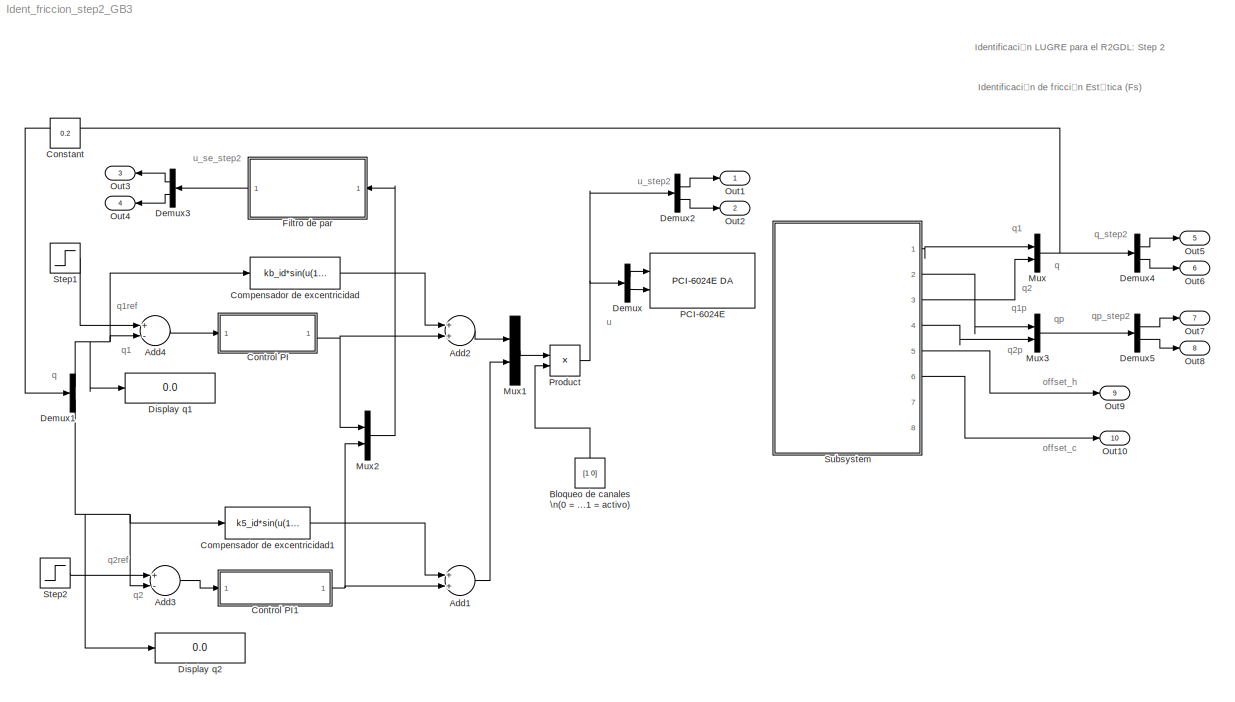
MODEL Ident_friccion_step2_GB3
KIND model
CONFIG PreLoadFcn = inicializacion_step2
CONFIG StopFcn = saveDATA_Ident_friccion_STEP2_GB
BLOCK [Sum] Add1
  CollapseMode = All dimensions
  InputSameDT = off
  OutDataTypeMode = Inherit via internal rule
  OutScaling = 2^-10
  Ports = [2, 1]
  SaturateOnIntegerOverflow = off
BLOCK [Sum] Add2
  CollapseMode = All dimensions
  InputSameDT = off
  OutDataTypeMode = Inherit via internal rule
  OutScaling = 2^-10
  Ports = [2, 1]
  SaturateOnIntegerOverflow = off
BLOCK [Sum] Add3
  CollapseMode = All dimensions
  InputSameDT = off
  Inputs = +-
  OutDataTypeMode = Inherit via internal rule
  OutScaling = 2^-10
  Ports = [2, 1]
  SaturateOnIntegerOverflow = off
BLOCK [Sum] Add4
  CollapseMode = All dimensions
  InputSameDT = off
  Inputs = +-
  OutDataTypeMode = Inherit via internal rule
  OutScaling = 2^-10
  Ports = [2, 1]
  SaturateOnIntegerOverflow = off
BLOCK [Constant] Bloqueo de canales \n(0 = Bloqueado, 1 = activo)
  Value = [1 0]
BLOCK [Fcn] Compensador de excentricidad
  Expr = kb_id*sin(u(1))
BLOCK [Fcn] Compensador de excentricidad1
  Expr = k5_id*sin(u(1))
BLOCK [Constant] Constant
  IOType = siggen
  Value = 0.2
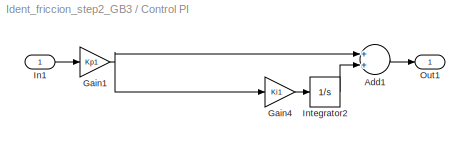
BLOCK [SubSystem] Control PI
  FunctionWithSeparateData = off
  MaskHideContents = off
  MinAlgLoopOccurrences = off
  Ports = [1, 1]
  RTWSystemCode = Auto
BLOCK [Sum] Control PI/Add1
  CollapseMode = All dimensions
  InputSameDT = off
  OutDataTypeMode = Inherit via internal rule
  OutScaling = 2^-10
  Ports = [2, 1]
  SaturateOnIntegerOverflow = off
BLOCK [Gain] Control PI/Gain1
  Gain = Kp1
  OutDataTypeMode = Inherit via internal rule
  ParameterDataTypeMode = Inherit via internal rule
  SaturateOnIntegerOverflow = off
BLOCK [Gain] Control PI/Gain4
  Gain = Ki1
  OutDataTypeMode = Inherit via internal rule
  ParameterDataTypeMode = Inherit via internal rule
  SaturateOnIntegerOverflow = off
BLOCK [Inport] Control PI/In1
  IconDisplay = Port number
BLOCK [Integrator] Control PI/Integrator2
  IgnoreLimit = off
  Ports = [1, 1]
BLOCK [Outport] Control PI/Out1
  BusOutputAsStruct = off
  IconDisplay = Port number
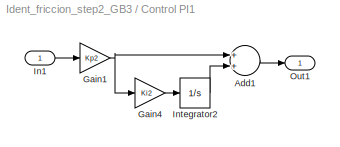
BLOCK [SubSystem] Control PI1
  FunctionWithSeparateData = off
  MaskHideContents = off
  MinAlgLoopOccurrences = off
  Ports = [1, 1]
  RTWSystemCode = Auto
BLOCK [Sum] Control PI1/Add1
  CollapseMode = All dimensions
  InputSameDT = off
  OutDataTypeMode = Inherit via internal rule
  OutScaling = 2^-10
  Ports = [2, 1]
  SaturateOnIntegerOverflow = off
BLOCK [Gain] Control PI1/Gain1
  Gain = Kp2
  OutDataTypeMode = Inherit via internal rule
  ParameterDataTypeMode = Inherit via internal rule
  SaturateOnIntegerOverflow = off
BLOCK [Gain] Control PI1/Gain4
  Gain = Ki2
  OutDataTypeMode = Inherit via internal rule
  ParameterDataTypeMode = Inherit via internal rule
  SaturateOnIntegerOverflow = off
BLOCK [Inport] Control PI1/In1
  IconDisplay = Port number
BLOCK [Integrator] Control PI1/Integrator2
  IgnoreLimit = off
  Ports = [1, 1]
BLOCK [Outport] Control PI1/Out1
  BusOutputAsStruct = off
  IconDisplay = Port number
BLOCK [Demux] Demux
  DisplayOption = bar
  Outputs = 2
  Ports = [1, 2]
BLOCK [Demux] Demux1
  DisplayOption = bar
  Outputs = 2
  Ports = [1, 2]
BLOCK [Demux] Demux2
  DisplayOption = bar
  Outputs = 2
  Ports = [1, 2]
BLOCK [Demux] Demux3
  DisplayOption = bar
  Outputs = 2
  Ports = [1, 2]
BLOCK [Demux] Demux4
  DisplayOption = bar
  Outputs = 2
  Ports = [1, 2]
BLOCK [Demux] Demux5
  DisplayOption = bar
  Outputs = 2
  Ports = [1, 2]
BLOCK [Display] Display q1
  Decimation = 1
  Lockdown = off
  Ports = [1]
BLOCK [Display] Display q2
  Decimation = 1
  Lockdown = off
  Ports = [1]
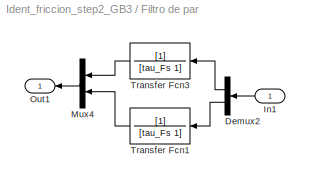
BLOCK [SubSystem] Filtro de par
  FunctionWithSeparateData = off
  MaskHideContents = off
  MinAlgLoopOccurrences = off
  Ports = [1, 1]
  RTWSystemCode = Auto
BLOCK [Demux] Filtro de par/Demux2
  DisplayOption = bar
  Outputs = 2
  Ports = [1, 2]
BLOCK [Inport] Filtro de par/In1
  IconDisplay = Port number
BLOCK [Mux] Filtro de par/Mux4
  DisplayOption = bar
  Inputs = 2
  Ports = [2, 1]
BLOCK [Outport] Filtro de par/Out1
  BusOutputAsStruct = off
  IconDisplay = Port number
BLOCK [TransferFcn] Filtro de par/Transfer Fcn1
  Denominator = [tau_Fs 1]
BLOCK [TransferFcn] Filtro de par/Transfer Fcn3
  Denominator = [tau_Fs 1]
BLOCK [Mux] Mux
  DisplayOption = bar
  Inputs = 2
  Ports = [2, 1]
BLOCK [Mux] Mux1
  DisplayOption = bar
  Inputs = 2
  Ports = [2, 1]
BLOCK [Mux] Mux2
  DisplayOption = bar
  Inputs = 2
  Ports = [2, 1]
BLOCK [Mux] Mux3
  DisplayOption = bar
  Inputs = 2
  Ports = [2, 1]
BLOCK [Outport] Out1
  BusOutputAsStruct = off
  IconDisplay = Port number
BLOCK [Outport] Out10
  BusOutputAsStruct = off
  IconDisplay = Port number
  Port = 10
BLOCK [Outport] Out2
  BusOutputAsStruct = off
  IconDisplay = Port number
  Port = 2
BLOCK [Outport] Out3
  BusOutputAsStruct = off
  IconDisplay = Port number
  Port = 3
BLOCK [Outport] Out4
  BusOutputAsStruct = off
  IconDisplay = Port number
  Port = 4
BLOCK [Outport] Out5
  BusOutputAsStruct = off
  IconDisplay = Port number
  Port = 5
BLOCK [Outport] Out6
  BusOutputAsStruct = off
  IconDisplay = Port number
  Port = 6
BLOCK [Outport] Out7
  BusOutputAsStruct = off
  IconDisplay = Port number
  Port = 7
BLOCK [Outport] Out8
  BusOutputAsStruct = off
  IconDisplay = Port number
  Port = 8
BLOCK [Outport] Out9
  BusOutputAsStruct = off
  IconDisplay = Port number
  Port = 9
BLOCK [Reference] PCI-6024E   REF=xpcnilib/D//A/PCI-6024E DA
  Ports = [2]
  SourceBlock = xpcnilib/D//A/PCI-6024E DA
  SourceType = danipci6024e
  channel = [1,2]
  initValue = [0]
  reset = [1]
  sampletime = 0.001
  slot = -1
BLOCK [Product] Product
  CollapseMode = All dimensions
  InputSameDT = off
  OutDataTypeMode = Inherit via internal rule
  Ports = [2, 1]
  SaturateOnIntegerOverflow = off
BLOCK [Step] Step1
  After = teta1*pi/180
  SampleTime = 0
  Time = 0
BLOCK [Step] Step2
  After = teta2*pi/180
  SampleTime = 0
  Time = 0
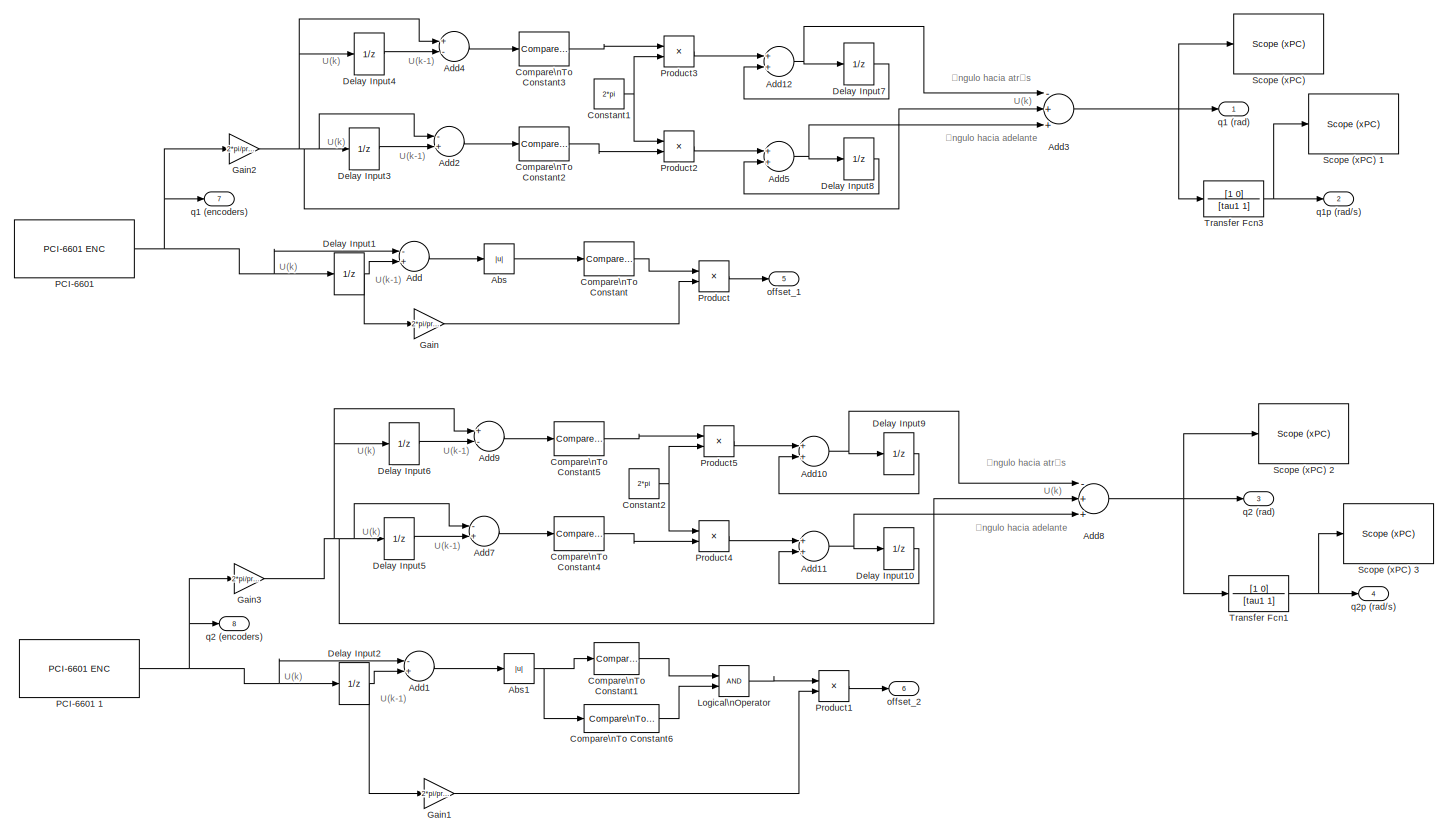
[diagram: Subsystem - part 1/1, most of the canvas]
BLOCK [SubSystem] Subsystem
  FunctionWithSeparateData = off
  MaskHideContents = off
  MinAlgLoopOccurrences = off
  Ports = [0, 8]
  RTWSystemCode = Auto
BLOCK [Abs] Subsystem/Abs
  SaturateOnIntegerOverflow = off
BLOCK [Abs] Subsystem/Abs1
  SaturateOnIntegerOverflow = off
BLOCK [Sum] Subsystem/Add
  CollapseMode = All dimensions
  InputSameDT = off
  Inputs = -+
  OutDataTypeMode = Inherit via internal rule
  OutScaling = 2^-10
  Ports = [2, 1]
  SaturateOnIntegerOverflow = off
BLOCK [Sum] Subsystem/Add1
  CollapseMode = All dimensions
  InputSameDT = off
  Inputs = -+
  OutDataTypeMode = Inherit via internal rule
  OutScaling = 2^-10
  Ports = [2, 1]
  SaturateOnIntegerOverflow = off
BLOCK [Sum] Subsystem/Add10
  CollapseMode = All dimensions
  InputSameDT = off
  OutDataTypeMode = Inherit via internal rule
  OutScaling = 2^-10
  Ports = [2, 1]
  SaturateOnIntegerOverflow = off
BLOCK [Sum] Subsystem/Add11
  CollapseMode = All dimensions
  InputSameDT = off
  OutDataTypeMode = Inherit via internal rule
  OutScaling = 2^-10
  Ports = [2, 1]
  SaturateOnIntegerOverflow = off
BLOCK [Sum] Subsystem/Add12
  CollapseMode = All dimensions
  InputSameDT = off
  OutDataTypeMode = Inherit via internal rule
  OutScaling = 2^-10
  Ports = [2, 1]
  SaturateOnIntegerOverflow = off
BLOCK [Sum] Subsystem/Add2
  CollapseMode = All dimensions
  InputSameDT = off
  Inputs = -+
  OutDataTypeMode = Inherit via internal rule
  OutScaling = 2^-10
  Ports = [2, 1]
  SaturateOnIntegerOverflow = off
BLOCK [Sum] Subsystem/Add3
  CollapseMode = All dimensions
  InputSameDT = off
  Inputs = -++
  OutDataTypeMode = Inherit via internal rule
  OutScaling = 2^-10
  Ports = [3, 1]
  SaturateOnIntegerOverflow = off
BLOCK [Sum] Subsystem/Add4
  CollapseMode = All dimensions
  InputSameDT = off
  Inputs = +-
  OutDataTypeMode = Inherit via internal rule
  OutScaling = 2^-10
  Ports = [2, 1]
  SaturateOnIntegerOverflow = off
BLOCK [Sum] Subsystem/Add5
  CollapseMode = All dimensions
  InputSameDT = off
  OutDataTypeMode = Inherit via internal rule
  OutScaling = 2^-10
  Ports = [2, 1]
  SaturateOnIntegerOverflow = off
BLOCK [Sum] Subsystem/Add7
  CollapseMode = All dimensions
  InputSameDT = off
  Inputs = -+
  OutDataTypeMode = Inherit via internal rule
  OutScaling = 2^-10
  Ports = [2, 1]
  SaturateOnIntegerOverflow = off
BLOCK [Sum] Subsystem/Add8
  CollapseMode = All dimensions
  InputSameDT = off
  Inputs = -++
  OutDataTypeMode = Inherit via internal rule
  OutScaling = 2^-10
  Ports = [3, 1]
  SaturateOnIntegerOverflow = off
BLOCK [Sum] Subsystem/Add9
  CollapseMode = All dimensions
  InputSameDT = off
  Inputs = +-
  OutDataTypeMode = Inherit via internal rule
  OutScaling = 2^-10
  Ports = [2, 1]
  SaturateOnIntegerOverflow = off
BLOCK [Reference] Subsystem/Compare\nTo Constant  REF=simulink/Logic and Bit\nOperations/Compare\nTo Constant
  FunctionWithSeparateData = off
  LogicOutDataTypeMode = uint8
  Ports = [1, 1]
  RTWMemSecDataConstants = Inherit from model
  RTWMemSecDataInternal = Inherit from model
  RTWMemSecDataParameters = Inherit from model
  RTWMemSecFuncExecute = Inherit from model
  RTWMemSecFuncInitTerm = Inherit from model
  ShowPortLabels = FromPortIcon
  SourceBlock = simulink/Logic and Bit\nOperations/Compare\nTo Constant
  SourceType = Compare To Constant
  SystemSampleTime = -1
  ZeroCross = off
  const = zero_h
  relop = >
BLOCK [Reference] Subsystem/Compare\nTo Constant1  REF=simulink/Logic and Bit\nOperations/Compare\nTo Constant
  FunctionWithSeparateData = off
  LogicOutDataTypeMode = uint8
  Ports = [1, 1]
  RTWMemSecDataConstants = Inherit from model
  RTWMemSecDataInternal = Inherit from model
  RTWMemSecDataParameters = Inherit from model
  RTWMemSecFuncExecute = Inherit from model
  RTWMemSecFuncInitTerm = Inherit from model
  ShowPortLabels = FromPortIcon
  SourceBlock = simulink/Logic and Bit\nOperations/Compare\nTo Constant
  SourceType = Compare To Constant
  SystemSampleTime = -1
  ZeroCross = off
  const = zero_c
  relop = >
BLOCK [Reference] Subsystem/Compare\nTo Constant2  REF=simulink/Logic and Bit\nOperations/Compare\nTo Constant
  FunctionWithSeparateData = off
  LogicOutDataTypeMode = uint8
  Ports = [1, 1]
  RTWMemSecDataConstants = Inherit from model
  RTWMemSecDataInternal = Inherit from model
  RTWMemSecDataParameters = Inherit from model
  RTWMemSecFuncExecute = Inherit from model
  RTWMemSecFuncInitTerm = Inherit from model
  ShowPortLabels = FromPortIcon
  SourceBlock = simulink/Logic and Bit\nOperations/Compare\nTo Constant
  SourceType = Compare To Constant
  SystemSampleTime = -1
  ZeroCross = off
  const = pi
  relop = >
BLOCK [Reference] Subsystem/Compare\nTo Constant3  REF=simulink/Logic and Bit\nOperations/Compare\nTo Constant
  FunctionWithSeparateData = off
  LogicOutDataTypeMode = uint8
  Ports = [1, 1]
  RTWMemSecDataConstants = Inherit from model
  RTWMemSecDataInternal = Inherit from model
  RTWMemSecDataParameters = Inherit from model
  RTWMemSecFuncExecute = Inherit from model
  RTWMemSecFuncInitTerm = Inherit from model
  ShowPortLabels = FromPortIcon
  SourceBlock = simulink/Logic and Bit\nOperations/Compare\nTo Constant
  SourceType = Compare To Constant
  SystemSampleTime = -1
  ZeroCross = off
  const = pi
  relop = >
BLOCK [Reference] Subsystem/Compare\nTo Constant4  REF=simulink/Logic and Bit\nOperations/Compare\nTo Constant
  FunctionWithSeparateData = off
  LogicOutDataTypeMode = uint8
  Ports = [1, 1]
  RTWMemSecDataConstants = Inherit from model
  RTWMemSecDataInternal = Inherit from model
  RTWMemSecDataParameters = Inherit from model
  RTWMemSecFuncExecute = Inherit from model
  RTWMemSecFuncInitTerm = Inherit from model
  ShowPortLabels = FromPortIcon
  SourceBlock = simulink/Logic and Bit\nOperations/Compare\nTo Constant
  SourceType = Compare To Constant
  SystemSampleTime = -1
  ZeroCross = off
  const = pi
  relop = >
BLOCK [Reference] Subsystem/Compare\nTo Constant5  REF=simulink/Logic and Bit\nOperations/Compare\nTo Constant
  FunctionWithSeparateData = off
  LogicOutDataTypeMode = uint8
  Ports = [1, 1]
  RTWMemSecDataConstants = Inherit from model
  RTWMemSecDataInternal = Inherit from model
  RTWMemSecDataParameters = Inherit from model
  RTWMemSecFuncExecute = Inherit from model
  RTWMemSecFuncInitTerm = Inherit from model
  ShowPortLabels = FromPortIcon
  SourceBlock = simulink/Logic and Bit\nOperations/Compare\nTo Constant
  SourceType = Compare To Constant
  SystemSampleTime = -1
  ZeroCross = off
  const = pi
  relop = >
BLOCK [Reference] Subsystem/Compare\nTo Constant6  REF=simulink/Logic and Bit\nOperations/Compare\nTo Constant
  FunctionWithSeparateData = off
  LogicOutDataTypeMode = uint8
  Ports = [1, 1]
  RTWMemSecDataConstants = Inherit from model
  RTWMemSecDataInternal = Inherit from model
  RTWMemSecDataParameters = Inherit from model
  RTWMemSecFuncExecute = Inherit from model
  RTWMemSecFuncInitTerm = Inherit from model
  ShowPortLabels = FromPortIcon
  SourceBlock = simulink/Logic and Bit\nOperations/Compare\nTo Constant
  SourceType = Compare To Constant
  SystemSampleTime = -1
  ZeroCross = off
  const = precision
  relop = <
BLOCK [Constant] Subsystem/Constant1
  Value = 2*pi
BLOCK [Constant] Subsystem/Constant2
  Value = 2*pi
BLOCK [UnitDelay] Subsystem/Delay Input1
  Description = \nStore in Global RAM
  SampleTime = -1
BLOCK [UnitDelay] Subsystem/Delay Input10
  Description = \nStore in Global RAM
  SampleTime = -1
BLOCK [UnitDelay] Subsystem/Delay Input2
  Description = \nStore in Global RAM
  SampleTime = -1
BLOCK [UnitDelay] Subsystem/Delay Input3
  Description = \nStore in Global RAM
  SampleTime = -1
BLOCK [UnitDelay] Subsystem/Delay Input4
  Description = \nStore in Global RAM
  SampleTime = -1
BLOCK [UnitDelay] Subsystem/Delay Input5
  Description = \nStore in Global RAM
  SampleTime = -1
BLOCK [UnitDelay] Subsystem/Delay Input6
  Description = \nStore in Global RAM
  SampleTime = -1
BLOCK [UnitDelay] Subsystem/Delay Input7
  Description = \nStore in Global RAM
  SampleTime = -1
BLOCK [UnitDelay] Subsystem/Delay Input8
  Description = \nStore in Global RAM
  SampleTime = -1
BLOCK [UnitDelay] Subsystem/Delay Input9
  Description = \nStore in Global RAM
  SampleTime = -1
BLOCK [Gain] Subsystem/Gain
  Gain = 2*pi/precision
  OutDataTypeMode = Inherit via internal rule
  ParameterDataTypeMode = Inherit via internal rule
  SaturateOnIntegerOverflow = off
BLOCK [Gain] Subsystem/Gain1
  Gain = 2*pi/precision
  OutDataTypeMode = Inherit via internal rule
  ParameterDataTypeMode = Inherit via internal rule
  SaturateOnIntegerOverflow = off
BLOCK [Gain] Subsystem/Gain2
  Gain = 2*pi/precision
  OutDataTypeMode = Inherit via internal rule
  ParameterDataTypeMode = Inherit via internal rule
  SaturateOnIntegerOverflow = off
BLOCK [Gain] Subsystem/Gain3
  Gain = 2*pi/precision
  OutDataTypeMode = Inherit via internal rule
  ParameterDataTypeMode = Inherit via internal rule
  SaturateOnIntegerOverflow = off
BLOCK [Logic] Subsystem/Logical\nOperator
  AllPortsSameDT = off
  OutDataTypeMode = Specify via dialog
  Ports = [2, 1]
BLOCK [Reference] Subsystem/PCI-6601   REF=xpcnilib/Incremental\nEncoder/PCI-6601 ENC
  Ports = [0, 1]
  SourceBlock = xpcnilib/Incremental\nEncoder/PCI-6601 ENC
  SourceType = encnipci6601
  channel = 1
  countMode = Quadrature Mode X1
  filter = None
  indexPhase = A high B high
  initCount = 0
  reload = on
  sampleTime = 0.001
  slot = -1
BLOCK [Reference] Subsystem/PCI-6601 1  REF=xpcnilib/Incremental\nEncoder/PCI-6601 ENC
  Ports = [0, 1]
  SourceBlock = xpcnilib/Incremental\nEncoder/PCI-6601 ENC
  SourceType = encnipci6601
  channel = 2
  countMode = Quadrature Mode X1
  filter = None
  indexPhase = A high B high
  initCount = 0
  reload = on
  sampleTime = 0.001
  slot = -1
BLOCK [Product] Subsystem/Product
  CollapseMode = All dimensions
  InputSameDT = off
  OutDataTypeMode = Inherit via internal rule
  Ports = [2, 1]
  SaturateOnIntegerOverflow = off
BLOCK [Product] Subsystem/Product1
  CollapseMode = All dimensions
  InputSameDT = off
  OutDataTypeMode = Inherit via internal rule
  Ports = [2, 1]
  SaturateOnIntegerOverflow = off
BLOCK [Product] Subsystem/Product2
  CollapseMode = All dimensions
  InputSameDT = off
  OutDataTypeMode = Inherit via internal rule
  Ports = [2, 1]
  SaturateOnIntegerOverflow = off
BLOCK [Product] Subsystem/Product3
  CollapseMode = All dimensions
  InputSameDT = off
  OutDataTypeMode = Inherit via internal rule
  Ports = [2, 1]
  SaturateOnIntegerOverflow = off
BLOCK [Product] Subsystem/Product4
  CollapseMode = All dimensions
  InputSameDT = off
  OutDataTypeMode = Inherit via internal rule
  Ports = [2, 1]
  SaturateOnIntegerOverflow = off
BLOCK [Product] Subsystem/Product5
  CollapseMode = All dimensions
  InputSameDT = off
  OutDataTypeMode = Inherit via internal rule
  Ports = [2, 1]
  SaturateOnIntegerOverflow = off
BLOCK [Reference] Subsystem/Scope (xPC)   REF=xpclib/Misc./Scope (xPC) 
  FunctionWithSeparateData = off
  Ports = [1]
  RTWMemSecDataConstants = Inherit from model
  RTWMemSecDataInternal = Inherit from model
  RTWMemSecDataParameters = Inherit from model
  RTWMemSecFuncExecute = Inherit from model
  RTWMemSecFuncInitTerm = Inherit from model
  ShowPortLabels = FromPortIcon
  SourceBlock = xpclib/Misc./Scope (xPC)
  SourceType = xpcscopeblock
  SystemSampleTime = -1
  autorestart = off
  autostart = on
  filename = data.dat
  formatstr = '%15.6f'
  grid = on
  interleave = 1
  mode = Lazy
  noprepostsamples = 0
  nosamples = 250
  scopeno = 1
  scopetype = Target
  triggerlevel = 0.0
  triggermode = FreeRun
  triggersample = 0
  triggerscope = 1
  triggersignal = 1
  triggerslope = Either
  viewmode = Graphical redraw
  writesize = 512
  ylimits = [0,0]
BLOCK [Reference] Subsystem/Scope (xPC) 1  REF=xpclib/Misc./Scope (xPC) 
  FunctionWithSeparateData = off
  Ports = [1]
  RTWMemSecDataConstants = Inherit from model
  RTWMemSecDataInternal = Inherit from model
  RTWMemSecDataParameters = Inherit from model
  RTWMemSecFuncExecute = Inherit from model
  RTWMemSecFuncInitTerm = Inherit from model
  ShowPortLabels = FromPortIcon
  SourceBlock = xpclib/Misc./Scope (xPC)
  SourceType = xpcscopeblock
  SystemSampleTime = -1
  autorestart = off
  autostart = on
  filename = data.dat
  formatstr = '%15.6f'
  grid = on
  interleave = 1
  mode = Lazy
  noprepostsamples = 0
  nosamples = 250
  scopeno = 2
  scopetype = Target
  triggerlevel = 0.0
  triggermode = FreeRun
  triggersample = 0
  triggerscope = 1
  triggersignal = 1
  triggerslope = Either
  viewmode = Graphical redraw
  writesize = 512
  ylimits = [0,0]
BLOCK [Reference] Subsystem/Scope (xPC) 2  REF=xpclib/Misc./Scope (xPC) 
  FunctionWithSeparateData = off
  Ports = [1]
  RTWMemSecDataConstants = Inherit from model
  RTWMemSecDataInternal = Inherit from model
  RTWMemSecDataParameters = Inherit from model
  RTWMemSecFuncExecute = Inherit from model
  RTWMemSecFuncInitTerm = Inherit from model
  ShowPortLabels = FromPortIcon
  SourceBlock = xpclib/Misc./Scope (xPC)
  SourceType = xpcscopeblock
  SystemSampleTime = -1
  autorestart = off
  autostart = on
  filename = data.dat
  formatstr = '%15.6f'
  grid = on
  interleave = 1
  mode = Lazy
  noprepostsamples = 0
  nosamples = 250
  scopeno = 3
  scopetype = Target
  triggerlevel = 0.0
  triggermode = FreeRun
  triggersample = 0
  triggerscope = 1
  triggersignal = 1
  triggerslope = Either
  viewmode = Graphical redraw
  writesize = 512
  ylimits = [0,0]
BLOCK [Reference] Subsystem/Scope (xPC) 3  REF=xpclib/Misc./Scope (xPC) 
  FunctionWithSeparateData = off
  Ports = [1]
  RTWMemSecDataConstants = Inherit from model
  RTWMemSecDataInternal = Inherit from model
  RTWMemSecDataParameters = Inherit from model
  RTWMemSecFuncExecute = Inherit from model
  RTWMemSecFuncInitTerm = Inherit from model
  ShowPortLabels = FromPortIcon
  SourceBlock = xpclib/Misc./Scope (xPC)
  SourceType = xpcscopeblock
  SystemSampleTime = -1
  autorestart = off
  autostart = on
  filename = data.dat
  formatstr = '%15.6f'
  grid = on
  interleave = 1
  mode = Lazy
  noprepostsamples = 0
  nosamples = 250
  scopeno = 4
  scopetype = Target
  triggerlevel = 0.0
  triggermode = FreeRun
  triggersample = 0
  triggerscope = 1
  triggersignal = 1
  triggerslope = Either
  viewmode = Graphical redraw
  writesize = 512
  ylimits = [0,0]
BLOCK [TransferFcn] Subsystem/Transfer Fcn1
  Denominator = [tau1 1]
  Numerator = [1 0]
BLOCK [TransferFcn] Subsystem/Transfer Fcn3
  Denominator = [tau1 1]
  Numerator = [1 0]
BLOCK [Outport] Subsystem/offset_1
  BusOutputAsStruct = off
  IconDisplay = Port number
  Port = 5
BLOCK [Outport] Subsystem/offset_2
  BusOutputAsStruct = off
  IconDisplay = Port number
  Port = 6
BLOCK [Outport] Subsystem/q1 (encoders)
  BusOutputAsStruct = off
  IconDisplay = Port number
  Port = 7
BLOCK [Outport] Subsystem/q1 (rad)
  BusOutputAsStruct = off
  IconDisplay = Port number
BLOCK [Outport] Subsystem/q1p (rad//s)
  BusOutputAsStruct = off
  IconDisplay = Port number
  Port = 2
BLOCK [Outport] Subsystem/q2 (encoders)
  BusOutputAsStruct = off
  IconDisplay = Port number
  Port = 8
BLOCK [Outport] Subsystem/q2 (rad)
  BusOutputAsStruct = off
  IconDisplay = Port number
  Port = 3
BLOCK [Outport] Subsystem/q2p (rad//s)
  BusOutputAsStruct = off
  IconDisplay = Port number
  Port = 4
ANNOTATION (root): Identificación LUGRE para el R2GDL: Step 2
ANNOTATION (root): Identificación de fricción Estática (Fs)
ANNOTATION (root): offset_c
ANNOTATION (root): offset_h
ANNOTATION (root): q
ANNOTATION (root): q1
ANNOTATION (root): q1p
ANNOTATION (root): q1ref
ANNOTATION (root): q2
ANNOTATION (root): q2p
ANNOTATION (root): q2ref
ANNOTATION (root): q_step2
ANNOTATION (root): qp
ANNOTATION (root): qp_step2
ANNOTATION (root): u
ANNOTATION (root): u_se_step2
ANNOTATION (root): u_step2
ANNOTATION Subsystem: U(k)
ANNOTATION Subsystem: U(k-1)
ANNOTATION Subsystem: Ángulo hacia adelante
ANNOTATION Subsystem: Ángulo hacia atrás
LINE Add1:1 -> Mux1:2
LINE Add2:1 -> Mux1:1
LINE Add3:1 -> Control PI1:1
LINE Add4:1 -> Control PI:1
LINE Bloqueo de canales \n(0 = Bloqueado, 1 = activo):1 -> Product:2
LINE Compensador de excentricidad1:1 -> Add1:1
LINE Compensador de excentricidad:1 -> Add2:1
LINE Control PI/Add1:1 -> Control PI/Out1:1
NET Control PI/Gain1:1 -> Control PI/Add1:1, Control PI/Gain4:1
LINE Control PI/Gain4:1 -> Control PI/Integrator2:1
LINE Control PI/In1:1 -> Control PI/Gain1:1
LINE Control PI/Integrator2:1 -> Control PI/Add1:2
LINE Control PI1/Add1:1 -> Control PI1/Out1:1
NET Control PI1/Gain1:1 -> Control PI1/Add1:1, Control PI1/Gain4:1
LINE Control PI1/Gain4:1 -> Control PI1/Integrator2:1
LINE Control PI1/In1:1 -> Control PI1/Gain1:1
LINE Control PI1/Integrator2:1 -> Control PI1/Add1:2
NET Control PI1:1 -> Add1:2, Mux2:2
NET Control PI:1 -> Add2:2, Mux2:1
NET Demux1:1 -> Add4:2, Compensador de excentricidad:1, Display q1:1
NET Demux1:2 -> Add3:2, Compensador de excentricidad1:1, Display q2:1
LINE Demux2:1 -> Out1:1
LINE Demux2:2 -> Out2:1
LINE Demux3:1 -> Out3:1
LINE Demux3:2 -> Out4:1
LINE Demux4:1 -> Out5:1
LINE Demux4:2 -> Out6:1
LINE Demux5:1 -> Out7:1
LINE Demux5:2 -> Out8:1
LINE Demux:1 -> PCI-6024E :1
LINE Demux:2 -> PCI-6024E :2
LINE Filtro de par/Demux2:1 -> Filtro de par/Transfer Fcn3:1
LINE Filtro de par/Demux2:2 -> Filtro de par/Transfer Fcn1:1
LINE Filtro de par/In1:1 -> Filtro de par/Demux2:1
LINE Filtro de par/Mux4:1 -> Filtro de par/Out1:1
LINE Filtro de par/Transfer Fcn1:1 -> Filtro de par/Mux4:2
LINE Filtro de par/Transfer Fcn3:1 -> Filtro de par/Mux4:1
LINE Filtro de par:1 -> Demux3:1
LINE Mux1:1 -> Product:1
LINE Mux2:1 -> Filtro de par:1
LINE Mux3:1 -> Demux5:1
NET Mux:1 -> Demux1:1, Demux4:1
NET Product:1 -> Demux2:1, Demux:1
LINE Step1:1 -> Add4:1
LINE Step2:1 -> Add3:1
NET Subsystem/Abs1:1 -> Subsystem/Compare\nTo Constant1:1, Subsystem/Compare\nTo Constant6:1
LINE Subsystem/Abs:1 -> Subsystem/Compare\nTo Constant:1
NET Subsystem/Add10:1 -> Subsystem/Add8:1, Subsystem/Delay Input9:1
NET Subsystem/Add11:1 -> Subsystem/Add8:3, Subsystem/Delay Input10:1
NET Subsystem/Add12:1 -> Subsystem/Add3:1, Subsystem/Delay Input7:1
LINE Subsystem/Add1:1 -> Subsystem/Abs1:1
LINE Subsystem/Add2:1 -> Subsystem/Compare\nTo Constant2:1
NET Subsystem/Add3:1 -> Subsystem/Scope (xPC) :1, Subsystem/Transfer Fcn3:1, Subsystem/q1 (rad):1
LINE Subsystem/Add4:1 -> Subsystem/Compare\nTo Constant3:1
NET Subsystem/Add5:1 -> Subsystem/Add3:3, Subsystem/Delay Input8:1
LINE Subsystem/Add7:1 -> Subsystem/Compare\nTo Constant4:1
NET Subsystem/Add8:1 -> Subsystem/Scope (xPC) 2:1, Subsystem/Transfer Fcn1:1, Subsystem/q2 (rad):1
LINE Subsystem/Add9:1 -> Subsystem/Compare\nTo Constant5:1
LINE Subsystem/Add:1 -> Subsystem/Abs:1
LINE Subsystem/Compare\nTo Constant1:1 -> Subsystem/Logical\nOperator:1
LINE Subsystem/Compare\nTo Constant2:1 -> Subsystem/Product2:2
LINE Subsystem/Compare\nTo Constant3:1 -> Subsystem/Product3:1
LINE Subsystem/Compare\nTo Constant4:1 -> Subsystem/Product4:2
LINE Subsystem/Compare\nTo Constant5:1 -> Subsystem/Product5:1
LINE Subsystem/Compare\nTo Constant6:1 -> Subsystem/Logical\nOperator:2
LINE Subsystem/Compare\nTo Constant:1 -> Subsystem/Product:1
NET Subsystem/Constant1:1 -> Subsystem/Product2:1, Subsystem/Product3:2
NET Subsystem/Constant2:1 -> Subsystem/Product4:1, Subsystem/Product5:2
LINE Subsystem/Delay Input10:1 -> Subsystem/Add11:2
NET Subsystem/Delay Input1:1 -> Subsystem/Add:2, Subsystem/Gain:1
NET Subsystem/Delay Input2:1 -> Subsystem/Add1:2, Subsystem/Gain1:1
LINE Subsystem/Delay Input3:1 -> Subsystem/Add2:2
LINE Subsystem/Delay Input4:1 -> Subsystem/Add4:2
LINE Subsystem/Delay Input5:1 -> Subsystem/Add7:2
LINE Subsystem/Delay Input6:1 -> Subsystem/Add9:2
LINE Subsystem/Delay Input7:1 -> Subsystem/Add12:2
LINE Subsystem/Delay Input8:1 -> Subsystem/Add5:2
LINE Subsystem/Delay Input9:1 -> Subsystem/Add10:2
LINE Subsystem/Gain1:1 -> Subsystem/Product1:2
NET Subsystem/Gain2:1 -> Subsystem/Add2:1, Subsystem/Add3:2, Subsystem/Add4:1, Subsystem/Delay Input3:1, Subsystem/Delay Input4:1
NET Subsystem/Gain3:1 -> Subsystem/Add7:1, Subsystem/Add8:2, Subsystem/Add9:1, Subsystem/Delay Input5:1, Subsystem/Delay Input6:1
LINE Subsystem/Gain:1 -> Subsystem/Product:2
LINE Subsystem/Logical\nOperator:1 -> Subsystem/Product1:1
NET Subsystem/PCI-6601 1:1 -> Subsystem/Add1:1, Subsystem/Delay Input2:1, Subsystem/Gain3:1, Subsystem/q2 (encoders):1
NET Subsystem/PCI-6601 :1 -> Subsystem/Add:1, Subsystem/Delay Input1:1, Subsystem/Gain2:1, Subsystem/q1 (encoders):1
LINE Subsystem/Product1:1 -> Subsystem/offset_2:1
LINE Subsystem/Product2:1 -> Subsystem/Add5:1
LINE Subsystem/Product3:1 -> Subsystem/Add12:1
LINE Subsystem/Product4:1 -> Subsystem/Add11:1
LINE Subsystem/Product5:1 -> Subsystem/Add10:1
LINE Subsystem/Product:1 -> Subsystem/offset_1:1
NET Subsystem/Transfer Fcn1:1 -> Subsystem/Scope (xPC) 3:1, Subsystem/q2p (rad//s):1
NET Subsystem/Transfer Fcn3:1 -> Subsystem/Scope (xPC) 1:1, Subsystem/q1p (rad//s):1
LINE Subsystem:1 -> Mux:1
LINE Subsystem:2 -> Mux3:1
LINE Subsystem:3 -> Mux:2
LINE Subsystem:4 -> Mux3:2
LINE Subsystem:5 -> Out9:1
LINE Subsystem:6 -> Out10:1
note: NET lines group one-source signal fan-out (src -> all destinations, sorted); 1:1 wires keep LINE
